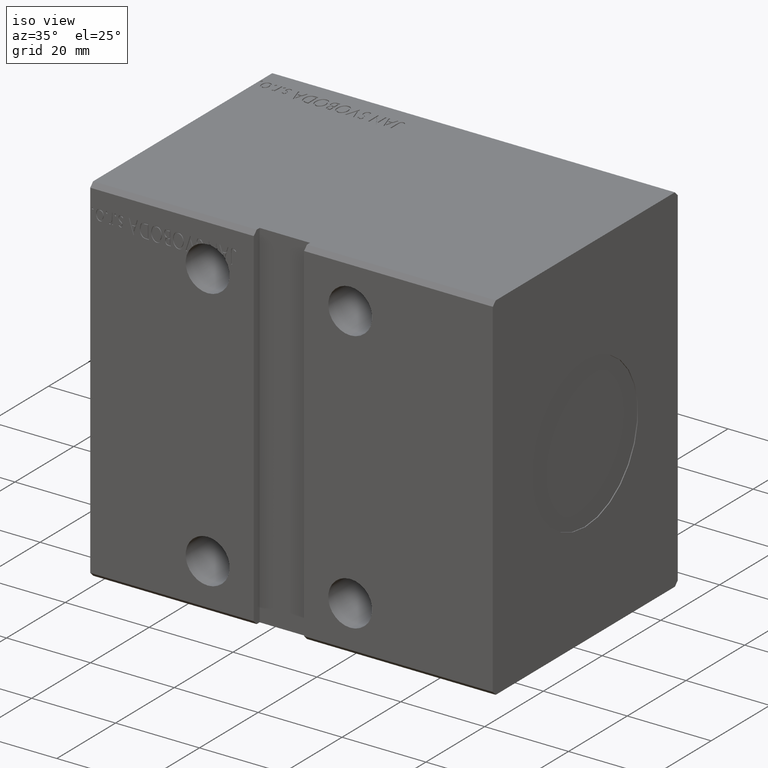
[diagram: clean part render]
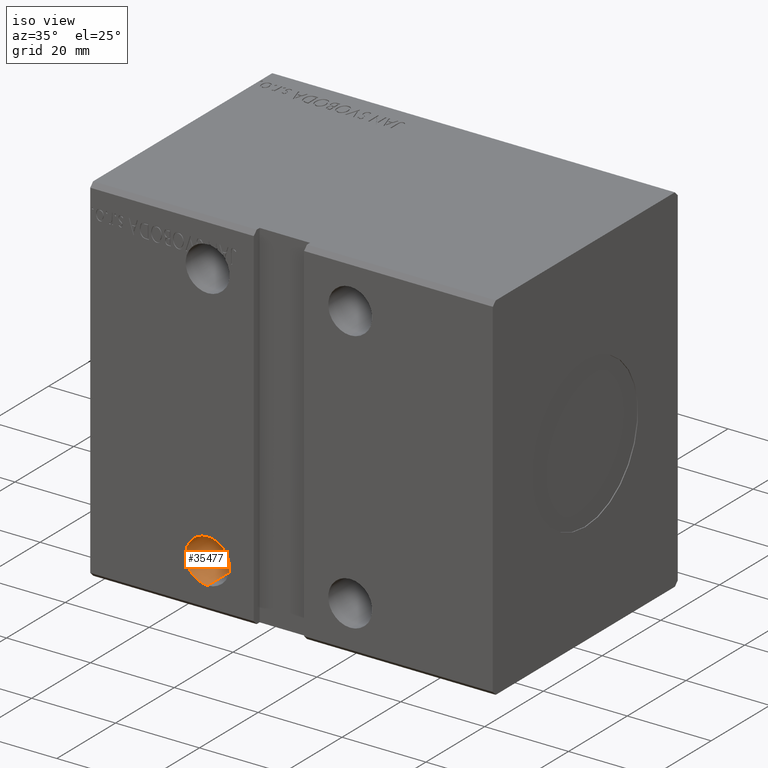
[diagram: same view with one face highlighted and labeled with its STEP entity id]
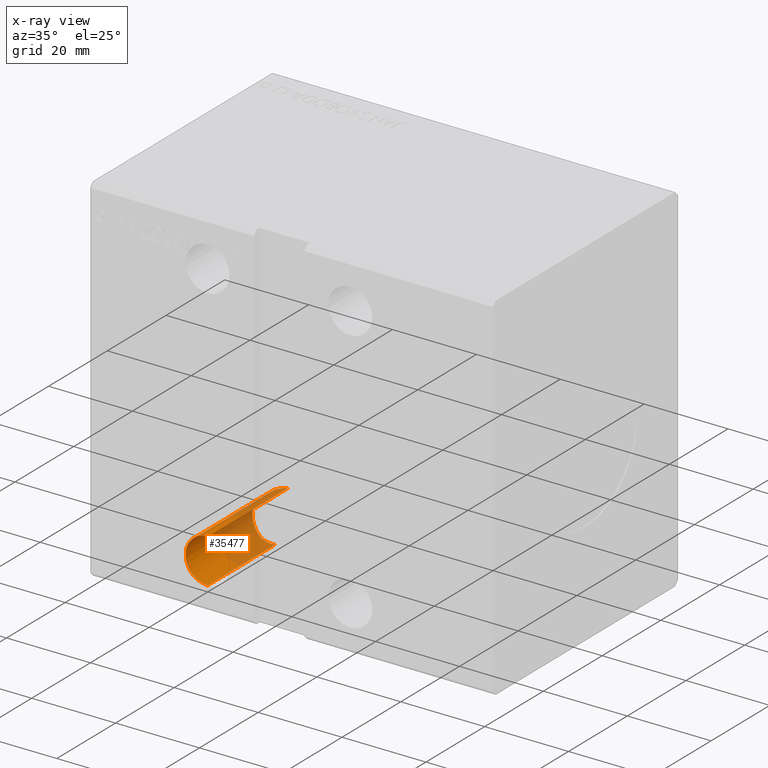
[diagram: x-ray of the same camera — body ghosted, the highlighted face saturated]
A machine part, iso view. The second image highlights one B-rep face of the part: STEP entity #35477.
The next image is the same camera in x-ray: the body ghosted, the highlighted face saturated — about 50% of this face is hidden behind the body in this view.
In plain terms, the highlighted cylindrical surface (edge-blend (fillet) strip) has radius 5.25 mm, axis along (-0, -1, -0).
Its self-contained STEP definition (entity closure, byte-faithful):
#455 = EDGE_CURVE ( 'NONE', #38071, #18462, #12771, .T. ) ;
#1009 = CARTESIAN_POINT ( 'NONE',  ( 25.59139474755289712, -8.982805896134886225, -36.17063999887223247 ) ) ;
#1218 = CARTESIAN_POINT ( 'NONE',  ( 22.74804822313883790, -8.713708641842128344, -31.68149027390553840 ) ) ;
#1411 = CARTESIAN_POINT ( 'NONE',  ( 25.09443679181387310, -5.002674585701057275, -27.12109105670066000 ) ) ;
#1749 = ORIENTED_EDGE ( 'NONE', *, *, #27171, .T. ) ;
#2410 = EDGE_CURVE ( 'NONE', #28562, #12285, #40571, .T. ) ;
#3113 = CARTESIAN_POINT ( 'NONE',  ( 28.00000000000000355, 31.50000000000002842, -36.75000000000000000 ) ) ;
#3494 = CARTESIAN_POINT ( 'NONE',  ( 28.00000000000000355, 31.50000000000002842, -26.25000000000000355 ) ) ;
#3497 = CARTESIAN_POINT ( 'NONE',  ( 23.95726430294239861, -8.945460866260507515, -34.88153592072618636 ) ) ;
#4720 = CARTESIAN_POINT ( 'NONE',  ( 24.71676707690343733, -4.995543056499614387, -27.39664495038917735 ) ) ;
#4929 = CARTESIAN_POINT ( 'NONE',  ( 22.86212622378299031, -8.742604917044038970, -32.60391993553432854 ) ) ;
#5479 = EDGE_LOOP ( 'NONE', ( #1749, #39952, #8039, #19762, #37805, #37193 ) ) ;
#6114 = DIRECTION ( 'NONE',  ( 0.000000000000000000, 0.000000000000000000, -1.000000000000000000 ) ) ;
#7433 = CARTESIAN_POINT ( 'NONE',  ( 22.76106731078869672, -8.717111773706365696, -31.91217486323479235 ) ) ;
#7653 = VECTOR ( 'NONE', #19253, 1000.000000000000000 ) ;
#7966 = EDGE_CURVE ( 'NONE', #38071, #32062, #19044, .T. ) ;
#8039 = ORIENTED_EDGE ( 'NONE', *, *, #8972, .T. ) ;
#8972 = EDGE_CURVE ( 'NONE', #12285, #32062, #28155, .T. ) ;
#9017 = CYLINDRICAL_SURFACE ( 'NONE', #20146, 5.249999999999997335 ) ;
#10124 = CARTESIAN_POINT ( 'NONE',  ( 27.11034434197095777, -8.752165220027299242, -36.67901082102268617 ) ) ;
#10288 = CARTESIAN_POINT ( 'NONE',  ( 23.49750069405891040, -8.873696852814312308, -28.80000000000000782 ) ) ;
#10319 = CARTESIAN_POINT ( 'NONE',  ( 28.00000000000000355, -4.000000000000000000, -26.25000000000000711 ) ) ;
#10341 = AXIS2_PLACEMENT_3D ( 'NONE', #27748, #24853, #30859 ) ;
#10447 = VECTOR ( 'NONE', #33222, 1000.000000000000000 ) ;
#11080 = LINE ( 'NONE', #19786, #10447 ) ;
#12285 = VERTEX_POINT ( 'NONE', #16878 ) ;
#12519 = DIRECTION ( 'NONE',  ( -0.000000000000000000, -1.000000000000000000, -5.507058653894625853E-17 ) ) ;
#12771 = B_SPLINE_CURVE_WITH_KNOTS ( 'NONE', 3,
 ( #29131, #38480, #22948, #10124, #32464, #22732, #35578, #16732, #1009, #26247, #38892, #34965, #19234, #3497, #25640, #28726, #14655, #4929, #20037, #7433, #1218, #26452, #17353, #32871, #29553, #13840, #14036, #36594 ),
 .UNSPECIFIED., .F., .F.,
 ( 4, 2, 2, 2, 2, 2, 2, 2, 2, 2, 2, 2, 2, 4 ),
 ( 0.01291363936566357340, 0.01361175604324377404, 0.01430987272082397468, 0.01500798939840417533, 0.01570610607598437597, 0.01640422275356457488, 0.01710233943114477725, 0.01849857278630519242, 0.01989480614146561105, 0.02059292281904582383, 0.02129103949662604356, 0.02268727285178648648, 0.02338538952936671314, 0.02408350620694693980 ),
 .UNSPECIFIED. ) ;
#13840 = CARTESIAN_POINT ( 'NONE',  ( 23.27059274189552340, -8.832775809210357210, -29.20894511765796153 ) ) ;
#14030 = CARTESIAN_POINT ( 'NONE',  ( 25.70083698665994731, -4.954913717464657807, -26.77447146710592563 ) ) ;
#14036 = CARTESIAN_POINT ( 'NONE',  ( 23.37738945160329607, -8.853359550174989323, -29.00029658733043547 ) ) ;
#14655 = CARTESIAN_POINT ( 'NONE',  ( 23.03834888611822151, -8.784446765826636749, -33.27765657024913537 ) ) ;
#14989 = EDGE_CURVE ( 'NONE', #28384, #18462, #11080, .T. ) ;
#15428 = CARTESIAN_POINT ( 'NONE',  ( 28.00000000000000355, -4.000000000000000000, -26.25000000000000711 ) ) ;
#16732 = CARTESIAN_POINT ( 'NONE',  ( 25.80280332647018682, -8.966720906279062930, -36.27372584527573451 ) ) ;
#16878 = CARTESIAN_POINT ( 'NONE',  ( 28.00000000000000355, -31.50000000000000000, -26.25000000000001066 ) ) ;
#17353 = CARTESIAN_POINT ( 'NONE',  ( 22.82185515507104867, -8.733399877350683127, -30.51888342165216628 ) ) ;
#17550 = CARTESIAN_POINT ( 'NONE',  ( 25.29132205816253176, -4.995745578771801476, -26.99668629956673627 ) ) ;
#18462 = VERTEX_POINT ( 'NONE', #10288 ) ;
#19044 = LINE ( 'NONE', #3113, #7653 ) ;
#19234 = CARTESIAN_POINT ( 'NONE',  ( 24.44994982000762818, -8.984686236058527342, -35.37474424890113056 ) ) ;
#19253 = DIRECTION ( 'NONE',  ( -0.000000000000000000, -1.000000000000000000, -5.507058653894625853E-17 ) ) ;
#19762 = ORIENTED_EDGE ( 'NONE', *, *, #7966, .F. ) ;
#19786 = CARTESIAN_POINT ( 'NONE',  ( 23.49750069405891040, 31.50000000000002842, -28.80000000000000782 ) ) ;
#20037 = CARTESIAN_POINT ( 'NONE',  ( 22.81783157993402256, -8.731494617107420808, -32.37260203187950935 ) ) ;
#20146 = AXIS2_PLACEMENT_3D ( 'NONE', #25333, #12519, #6114 ) ;
#20445 = CARTESIAN_POINT ( 'NONE',  ( 27.20283190836022769, -4.494738512487841398, -26.30674343685334193 ) ) ;
#22732 = CARTESIAN_POINT ( 'NONE',  ( 26.44890769679656728, -8.885417148570533996, -36.52077516330830065 ) ) ;
#22948 = CARTESIAN_POINT ( 'NONE',  ( 27.55898194793435252, -8.631660365798145662, -36.73632918673811787 ) ) ;
#23746 = CARTESIAN_POINT ( 'NONE',  ( 23.73806822912814596, -4.844702839853504805, -28.39883142234031510 ) ) ;
#24853 = DIRECTION ( 'NONE',  ( 0.000000000000000000, -1.000000000000000000, -0.000000000000000000 ) ) ;
#25333 = CARTESIAN_POINT ( 'NONE',  ( 28.00000000000000355, 31.50000000000002842, -31.50000000000000000 ) ) ;
#25640 = CARTESIAN_POINT ( 'NONE',  ( 23.67579958464197887, -8.905157241044252103, -34.51349665352065443 ) ) ;
#26247 = CARTESIAN_POINT ( 'NONE',  ( 25.18903526593379993, -9.000267506207924484, -35.94012775998812259 ) ) ;
#26445 = CARTESIAN_POINT ( 'NONE',  ( 24.53452130714157065, -4.981212404602159971, -27.54929914959542003 ) ) ;
#26452 = CARTESIAN_POINT ( 'NONE',  ( 22.75460823258611143, -8.715402240385634158, -30.98803325270438691 ) ) ;
#26639 = CARTESIAN_POINT ( 'NONE',  ( 27.61439703188449712, -4.268497495818037279, -26.26008577856707049 ) ) ;
#26678 = CARTESIAN_POINT ( 'NONE',  ( 28.00000000000000355, -31.50000000000000000, -36.75000000000000711 ) ) ;
#27171 = EDGE_CURVE ( 'NONE', #28384, #28562, #35557, .T. ) ;
#27748 = CARTESIAN_POINT ( 'NONE',  ( 28.00000000000000355, -31.50000000000000000, -31.50000000000000711 ) ) ;
#28155 = CIRCLE ( 'NONE', #10341, 5.249999999999997335 ) ;
#28384 = VERTEX_POINT ( 'NONE', #38635 ) ;
#28562 = VERTEX_POINT ( 'NONE', #15428 ) ;
#28726 = CARTESIAN_POINT ( 'NONE',  ( 23.21242691909567668, -8.823826534343449879, -33.70431742450200119 ) ) ;
#29131 = CARTESIAN_POINT ( 'NONE',  ( 28.00000000000009592, -8.485281374238560659, -36.75000000000000000 ) ) ;
#29546 = CARTESIAN_POINT ( 'NONE',  ( 24.02648766254098689, -4.916183831172867613, -28.03676180082371872 ) ) ;
#29553 = CARTESIAN_POINT ( 'NONE',  ( 23.08708755828483206, -8.794858950005247422, -29.63465369784726278 ) ) ;
#29749 = CARTESIAN_POINT ( 'NONE',  ( 23.49750069405891040, -4.768909292033826297, -28.80000000000000782 ) ) ;
#30859 = DIRECTION ( 'NONE',  ( 0.000000000000000000, 0.000000000000000000, 1.000000000000000000 ) ) ;
#32062 = VERTEX_POINT ( 'NONE', #26678 ) ;
#32458 = CARTESIAN_POINT ( 'NONE',  ( 26.34621691083828665, -4.820417594782552939, -26.51197021268857057 ) ) ;
#32464 = CARTESIAN_POINT ( 'NONE',  ( 26.88824261936819227, -8.802528683756118966, -36.63595814820964591 ) ) ;
#32656 = CARTESIAN_POINT ( 'NONE',  ( 26.56101097305312919, -4.755570423527598400, -26.44628171163821051 ) ) ;
#32863 = CARTESIAN_POINT ( 'NONE',  ( 25.91618552455505053, -4.920297739335695475, -26.67577395875466806 ) ) ;
#32871 = CARTESIAN_POINT ( 'NONE',  ( 23.00995675461132706, -8.777464040215880559, -29.85218725184136090 ) ) ;
#33070 = CARTESIAN_POINT ( 'NONE',  ( 27.81159042458857655, -4.141307181558572026, -26.25000000000000355 ) ) ;
#33222 = DIRECTION ( 'NONE',  ( -0.000000000000000000, -1.000000000000000000, -5.507058653894625853E-17 ) ) ;
#34662 = FACE_OUTER_BOUND ( 'NONE', #5479, .T. ) ;
#34965 = CARTESIAN_POINT ( 'NONE',  ( 24.62713621548751775, -8.994166550248049674, -35.52991657403234882 ) ) ;
#35477 = ADVANCED_FACE ( 'NONE', ( #34662 ), #9017, .F. ) ;
#35557 = B_SPLINE_CURVE_WITH_KNOTS ( 'NONE', 3,
 ( #29749, #23746, #29546, #26445, #4720, #1411, #17550, #14030, #32863, #32458, #32656, #38886, #20445, #26639, #33070, #10319 ),
 .UNSPECIFIED., .F., .F.,
 ( 4, 2, 2, 2, 2, 2, 2, 4 ),
 ( 0.000000000000000000, 0.001404439782362210988, 0.002106659673543319518, 0.002808879564724428481, 0.003511099455905537011, 0.004213319347086645107, 0.004915539238267754504, 0.005617759129448863034 ),
 .UNSPECIFIED. ) ;
#35578 = CARTESIAN_POINT ( 'NONE',  ( 26.23167147769406427, -8.917934870984902673, -36.44865091769698751 ) ) ;
#36594 = CARTESIAN_POINT ( 'NONE',  ( 23.49750069405891040, -8.873696852814312308, -28.80000000000000782 ) ) ;
#37193 = ORIENTED_EDGE ( 'NONE', *, *, #14989, .F. ) ;
#37805 = ORIENTED_EDGE ( 'NONE', *, *, #455, .T. ) ;
#37874 = DIRECTION ( 'NONE',  ( -0.000000000000000000, -1.000000000000000000, -5.507058653894625853E-17 ) ) ;
#38048 = CARTESIAN_POINT ( 'NONE',  ( 28.00000000000009592, -8.485281374238560659, -36.75000000000000000 ) ) ;
#38071 = VERTEX_POINT ( 'NONE', #38048 ) ;
#38480 = CARTESIAN_POINT ( 'NONE',  ( 27.78180268124343755, -8.562425776103323116, -36.75000000000000711 ) ) ;
#38635 = CARTESIAN_POINT ( 'NONE',  ( 23.49750069405891040, -4.768909292033826297, -28.80000000000000782 ) ) ;
#38886 = CARTESIAN_POINT ( 'NONE',  ( 26.98822965779323368, -4.593380905062653952, -26.34373403203184338 ) ) ;
#38892 = CARTESIAN_POINT ( 'NONE',  ( 24.99615880545296775, -9.001891166895228835, -35.81200368511887433 ) ) ;
#39361 = VECTOR ( 'NONE', #37874, 1000.000000000000000 ) ;
#39952 = ORIENTED_EDGE ( 'NONE', *, *, #2410, .T. ) ;
#40571 = LINE ( 'NONE', #3494, #39361 ) ;